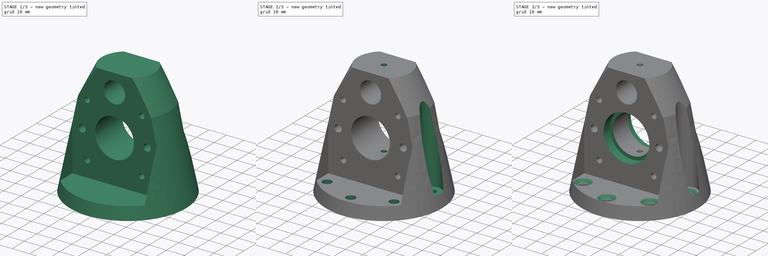
[diagram: build sequence overview — one tinted view per stage of 3, left to right]
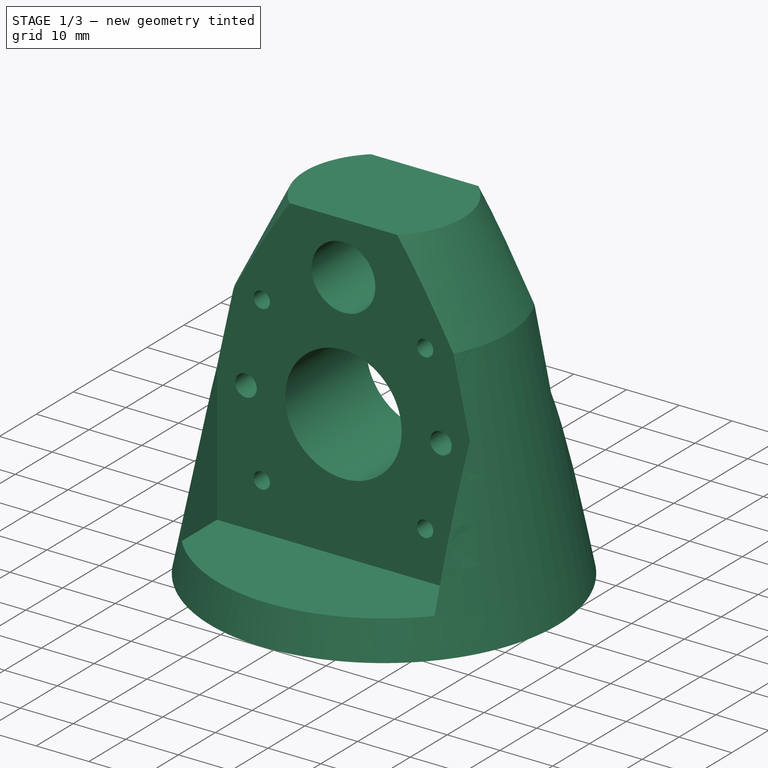
[diagram: stage 1 of 3 — iso view after this stage's code; geometry added in this stage tinted green]
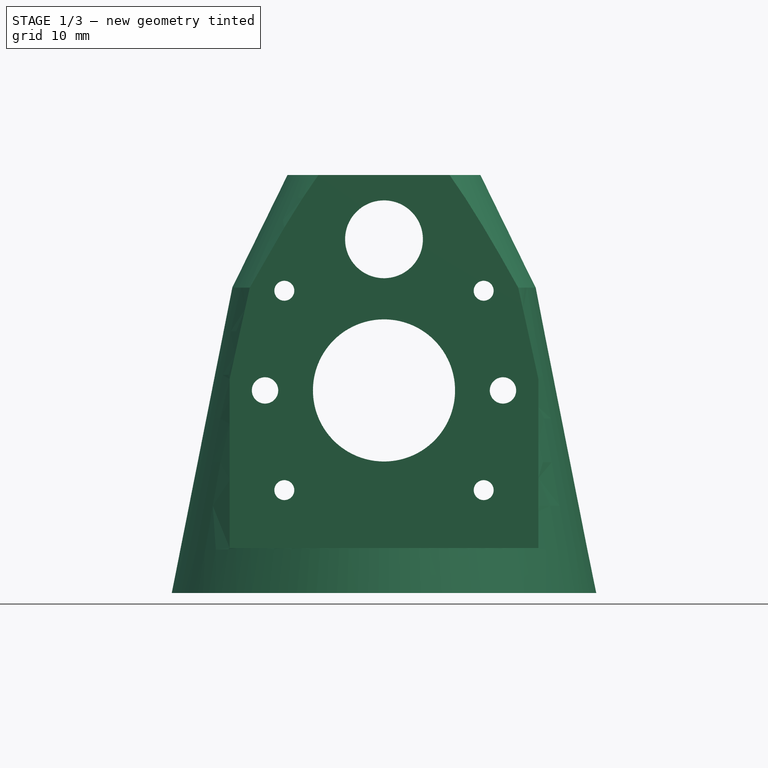
[diagram: stage 1 of 3 — front view after this stage's code; geometry added in this stage tinted green]
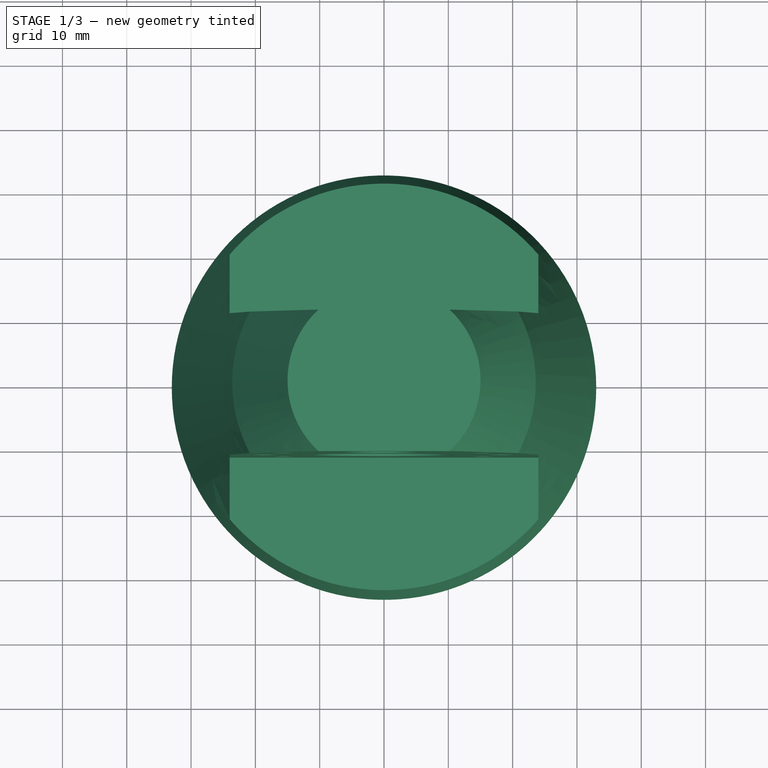
[diagram: stage 1 of 3 — top view after this stage's code; geometry added in this stage tinted green]
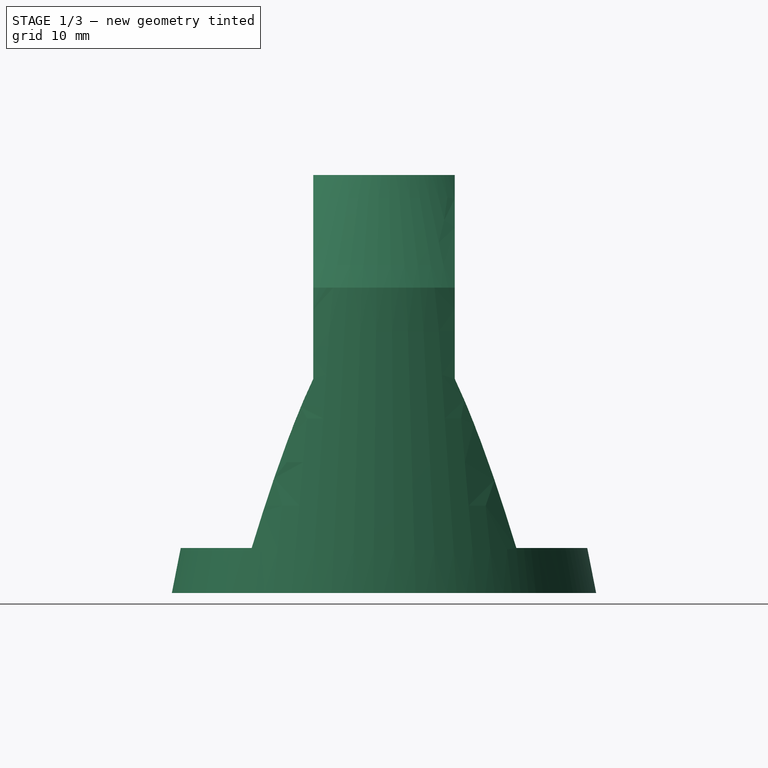
[diagram: stage 1 of 3 — right view after this stage's code; geometry added in this stage tinted green]
FCSTD DOCUMENT  (FreeCAD 0.19R)
Label: rod_holder_y
License: All rights reserved
LicenseURL: http://en.wikipedia.org/wiki/All_rights_reserved
objects: Sketcher::SketchObject×7, PartDesign::Pocket×6, PartDesign::Revolution×1, PartDesign::Chamfer×1, PartDesign::Body×1
note: 24 computed .brp shape members not serialized (recipe doc carries the construction recipe); baked Part::Feature solids carry a one-line shape summary decoded from their .brp

FEATURE [Sketcher::SketchObject] Sketch
  FullyConstrained = false
  MapMode = 5
  Placement = pos=(0,0,0) rot=(1,0,0;1.5708rad)
  Support = -> [XZ_Plane]
  sketch-geometry (5):
    g0: LineSegment StartX=0 StartY=0 StartZ=0 EndX=-33 EndY=0 EndZ=0
    g1: LineSegment StartX=0 StartY=0 StartZ=0 EndX=0 EndY=65 EndZ=0
    g2: LineSegment StartX=0 StartY=65 StartZ=0 EndX=-15 EndY=65 EndZ=0
    g3: LineSegment StartX=-15 StartY=65 StartZ=0 EndX=-23.588 EndY=47.4894 EndZ=0
    g4: LineSegment StartX=-23.588 StartY=47.4894 StartZ=0 EndX=-33 EndY=0 EndZ=0
  constraints (12):
    c: Coincident(g0,g-1)
    c: PointOnObject(g0,g-1)
    c: Coincident(g1,g0)
    c: PointOnObject(g1,g-2)
    c: Distance(g0) = 33
    c: Distance(g1) = 65
    c: Coincident(g2,g1)
    c: Horizontal(g2)
    c: Distance(g2) = 15
    c: Coincident(g3,g2)
    c: Coincident(g4,g3)
    c: Coincident(g4,g0)
FEATURE [PartDesign::Revolution] Revolution
  Angle = 360
  Axis = (0,-2e-16,1)
  Base = (0,0,0)
  Placement = pos=(0,0,0) rot=(1,0,0;1.5708rad)
  Profile = -> Sketch
  ReferenceAxis = -> Sketch [V_Axis]
FEATURE [Sketcher::SketchObject] Sketch001
  ExternalGeometry = -> [Revolution]
  FullyConstrained = false
  MapMode = 5
  Placement = pos=(0,0,0) rot=(1,0,0;1.5708rad)
  Support = -> [XZ_Plane]
  sketch-geometry (19):
    g0: LineSegment StartX=0 StartY=55 StartZ=0 EndX=0 EndY=47.4894 EndZ=0
    g1: Circle CenterX=0 CenterY=55 CenterZ=0 NormalX=0 NormalY=0 NormalZ=1 AngleXU=0 Radius=6.05
    g2: LineSegment StartX=0 StartY=55 StartZ=0 EndX=3.585e-12 EndY=31.5 EndZ=0
    g3: Circle CenterX=3.585e-12 CenterY=31.5 CenterZ=0 NormalX=0 NormalY=0 NormalZ=1 AngleXU=0 Radius=11.05
    g4: LineSegment StartX=3.585e-12 StartY=31.5 StartZ=0 EndX=18.5 EndY=31.5 EndZ=0
    g5: LineSegment StartX=3.585e-12 StartY=31.5 StartZ=0 EndX=-15.5 EndY=31.5 EndZ=0
    g6: Circle CenterX=18.5 CenterY=31.5 CenterZ=0 NormalX=0 NormalY=0 NormalZ=1 AngleXU=0 Radius=2.05
    g7: LineSegment StartX=-15.5 StartY=31.5 StartZ=0 EndX=15.5 EndY=31.5 EndZ=0
    g8: LineSegment StartX=15.5 StartY=31.5 StartZ=0 EndX=15.5 EndY=47 EndZ=0
    g9: LineSegment StartX=15.5 StartY=47 StartZ=0 EndX=-15.5 EndY=47 EndZ=0
    g10: LineSegment StartX=-15.5 StartY=47 StartZ=0 EndX=-15.5 EndY=31.5 EndZ=0
    g11: LineSegment StartX=-15.5 StartY=31.5 StartZ=0 EndX=13.8832 EndY=31.5 EndZ=0
    g12: LineSegment StartX=15.5 StartY=16 StartZ=0 EndX=-15.5 EndY=16 EndZ=0
    g13: LineSegment StartX=-15.5 StartY=16 StartZ=0 EndX=-15.5 EndY=31.5 EndZ=0
    g14: Circle CenterX=-18.5 CenterY=31.5 CenterZ=0 NormalX=0 NormalY=0 NormalZ=1 AngleXU=0 Radius=2.05
    g15: Circle CenterX=-15.5 CenterY=16 CenterZ=0 NormalX=0 NormalY=0 NormalZ=1 AngleXU=0 Radius=1.55
    g16: Circle CenterX=15.5 CenterY=16 CenterZ=0 NormalX=0 NormalY=0 NormalZ=1 AngleXU=0 Radius=1.55
    g17: Circle CenterX=15.5 CenterY=47 CenterZ=0 NormalX=0 NormalY=0 NormalZ=1 AngleXU=0 Radius=1.55
    g18: Circle CenterX=-15.5 CenterY=47 CenterZ=0 NormalX=0 NormalY=0 NormalZ=1 AngleXU=0 Radius=1.55
  constraints (45):
    c: PointOnObject(g0,g-2)
    c: PointOnObject(g0,g-3)
    c: Vertical(g0)
    c: Coincident(g1,g0)
    c: Diameter(g1) = 12.1
    c: Coincident(g2,g1)
    c: Distance(g2) = 23.5
    c: Coincident(g3,g2)
    c: Diameter(g3) = 22.1
    c: Coincident(g4,g3)
    c: Horizontal(g4)
    c: Coincident(g5,g3)
    c: Horizontal(g5)
    c: Distance(g4) = 18.5
    c: Distance(g5) = 15.5
    c: Coincident(g6,g4)
    c: Coincident(g7,g8)
    c: Coincident(g8,g9)
    c: Coincident(g9,g10)
    c: Coincident(g10,g7)
    c: Horizontal(g7)
    c: Vertical(g8)
    c: Vertical(g10)
    c: Coincident(g7,g5)
    c: Coincident(g12,g13)
    c: Coincident(g13,g11)
    c: Horizontal(g11)
    c: Coincident(g11,g5)
    c: Distance(g9) = 31
    c: Distance(g9,g12) = 31
    c: Symmetric(g9,g12,g5)
    c: Symmetric(g9,g8,g2)
    c: Symmetric(g12,g12,g-2)
    c: Coincident(g15,g12)
    c: Coincident(g16,g12)
    c: Coincident(g17,g8)
    c: Coincident(g18,g9)
    c: Symmetric(g6,g14,g-2)
    c: Diameter(g6) = 4.1
    c: Equal(g6,g14)
    c: Diameter(g16) = 3.1
    c: Equal(g16,g17)
    c: Equal(g16,g18)
    c: Equal(g16,g15)
    c: DistanceY(g-4,g-4) = 0
FEATURE [PartDesign::Pocket] Pocket
  BaseFeature = -> Revolution
  Length = 5
  Length2 = 100
  Midplane = true
  Placement = pos=(0,0,0) rot=(1,0,0;1.5708rad)
  Profile = -> Sketch001
  Type = 1
FEATURE [Sketcher::SketchObject] Sketch002
  FullyConstrained = true
  MapMode = 5
  Placement = pos=(0,1.44e-14,65) rot=(0,0,1;3.14159rad)
  Support = -> [Pocket]
  sketch-geometry (8):
    g0: LineSegment StartX=-24 StartY=41 StartZ=0 EndX=24 EndY=41 EndZ=0
    g1: LineSegment StartX=24 StartY=41 StartZ=0 EndX=24 EndY=11 EndZ=0
    g2: LineSegment StartX=24 StartY=11 StartZ=0 EndX=-24 EndY=11 EndZ=0
    g3: LineSegment StartX=-24 StartY=11 StartZ=0 EndX=-24 EndY=41 EndZ=0
    g4: LineSegment StartX=-24 StartY=-11 StartZ=0 EndX=24 EndY=-11 EndZ=0
    g5: LineSegment StartX=24 StartY=-11 StartZ=0 EndX=24 EndY=-41 EndZ=0
    g6: LineSegment StartX=24 StartY=-41 StartZ=0 EndX=-24 EndY=-41 EndZ=0
    g7: LineSegment StartX=-24 StartY=-41 StartZ=0 EndX=-24 EndY=-11 EndZ=0
  constraints (22):
    c: Coincident(g0,g1)
    c: Coincident(g1,g2)
    c: Coincident(g2,g3)
    c: Coincident(g3,g0)
    c: Horizontal(g2)
    c: Vertical(g1)
    c: Vertical(g3)
    c: DistanceY(g-1,g1) = 11
    c: Distance(g2) = 48
    c: Distance(g1) = 30
    c: Coincident(g4,g5)
    c: Coincident(g5,g6)
    c: Coincident(g6,g7)
    c: Coincident(g7,g4)
    c: Horizontal(g4)
    c: Vertical(g5)
    c: Vertical(g7)
    c: DistanceY(g4,g-1) = 11
    c: Distance(g5) = 30
    c: Distance(g6) = 48
    c: Symmetric(g5,g6,g-2)
    c: Symmetric(g0,g0,g-2)
FEATURE [PartDesign::Pocket] Pocket001
  BaseFeature = -> Pocket
  Length = 58
  Length2 = 100
  Placement = pos=(0,0,0) rot=(1,0,0;1.5708rad)
  Profile = -> Sketch002
  Type = 0
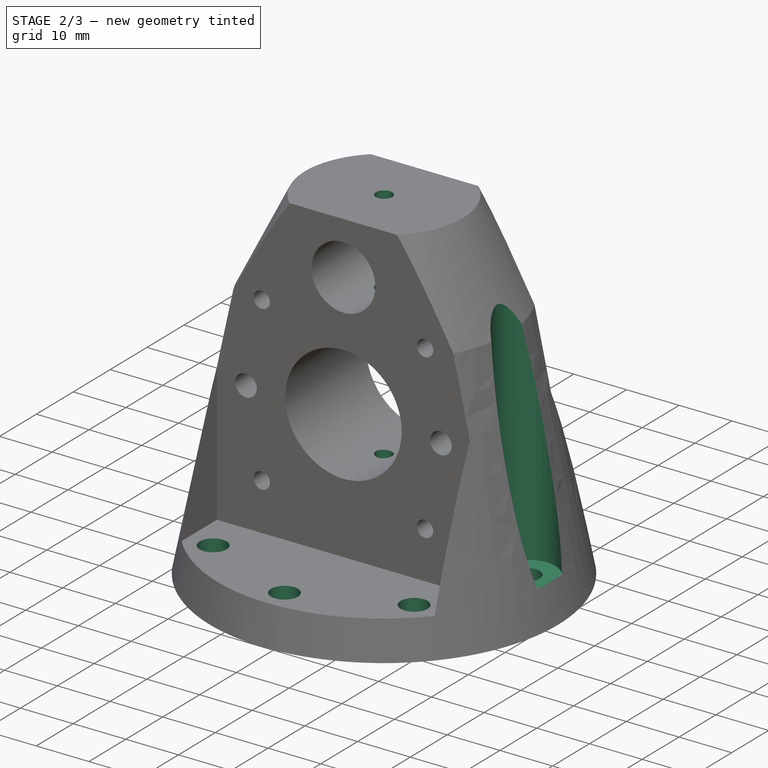
[diagram: stage 2 of 3 — iso view after this stage's code; geometry added in this stage tinted green]
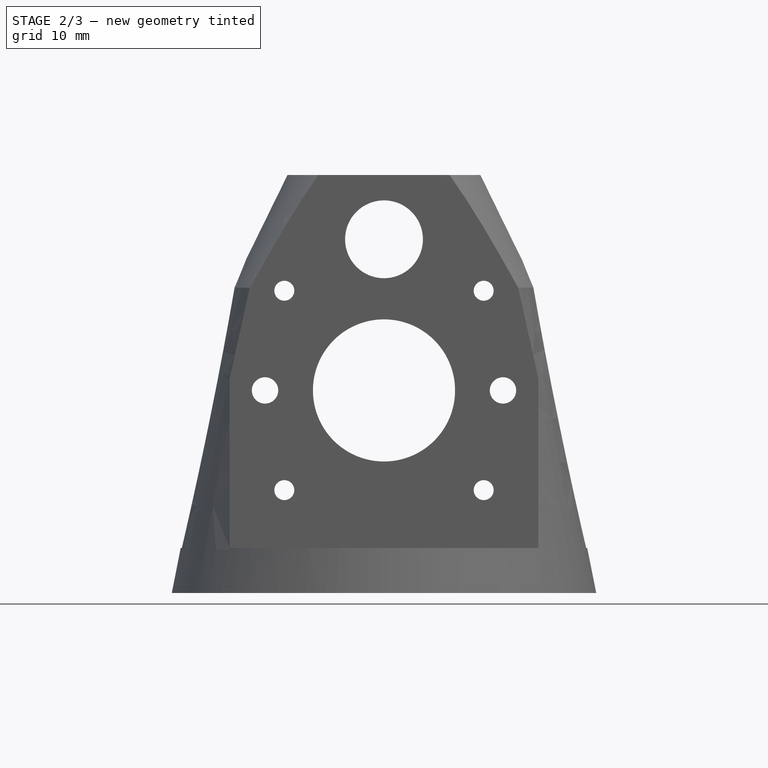
[diagram: stage 2 of 3 — front view after this stage's code; geometry added in this stage tinted green]
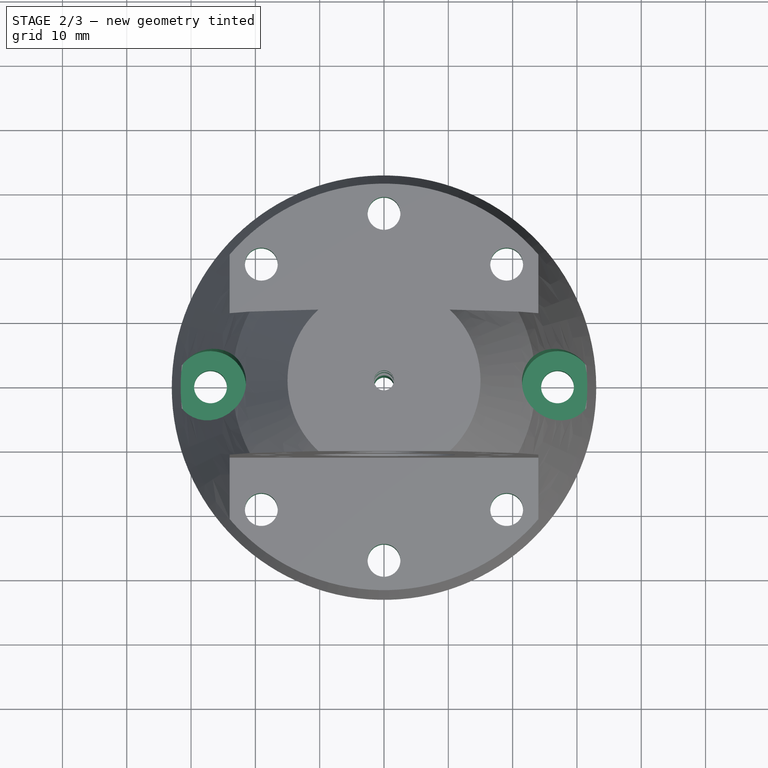
[diagram: stage 2 of 3 — top view after this stage's code; geometry added in this stage tinted green]
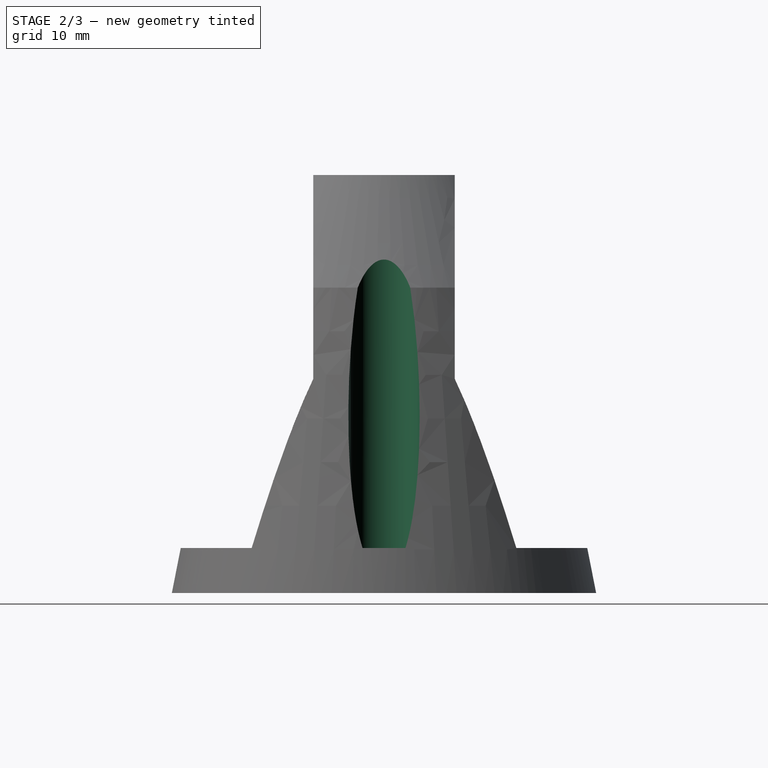
[diagram: stage 2 of 3 — right view after this stage's code; geometry added in this stage tinted green]
FEATURE [Sketcher::SketchObject] Sketch003
  FullyConstrained = false
  MapMode = 5
  Placement = pos=(0,0,0) rot=(1,0,0;3.14159rad)
  Support = -> [Pocket001]
  sketch-geometry (18):
    g0: LineSegment StartX=26.9777 StartY=0 StartZ=0 EndX=19.0761 EndY=19.0761 EndZ=0
    g1: LineSegment StartX=19.0761 StartY=19.0761 StartZ=0 EndX=3.6e-15 EndY=26.9777 EndZ=0
    g2: LineSegment StartX=3.6e-15 StartY=26.9777 StartZ=0 EndX=-19.0761 EndY=19.0761 EndZ=0
    g3: LineSegment StartX=-19.0761 StartY=19.0761 StartZ=0 EndX=-26.9777 EndY=0 EndZ=0
    g4: LineSegment StartX=-26.9777 StartY=0 StartZ=0 EndX=-19.0761 EndY=-19.0761 EndZ=0
    g5: LineSegment StartX=-19.0761 StartY=-19.0761 StartZ=0 EndX=-2.13e-14 EndY=-26.9777 EndZ=0
    g6: LineSegment StartX=-2.13e-14 StartY=-26.9777 StartZ=0 EndX=19.0761 EndY=-19.0761 EndZ=0
    g7: LineSegment StartX=19.0761 StartY=-19.0761 StartZ=0 EndX=26.9777 EndY=0 EndZ=0
    g8: Circle CenterX=0 CenterY=0 CenterZ=0 NormalX=0 NormalY=0 NormalZ=1 AngleXU=0 Radius=26.9777
    g9: Circle CenterX=19.0761 CenterY=19.0761 CenterZ=0 NormalX=0 NormalY=0 NormalZ=1 AngleXU=0 Radius=2.55
    g10: Circle CenterX=3.6e-15 CenterY=26.9777 CenterZ=0 NormalX=0 NormalY=0 NormalZ=1 AngleXU=0 Radius=2.55
    g11: Circle CenterX=-19.0761 CenterY=19.0761 CenterZ=0 NormalX=0 NormalY=0 NormalZ=1 AngleXU=0 Radius=2.55
    g12: Circle CenterX=26.9777 CenterY=0 CenterZ=0 NormalX=0 NormalY=0 NormalZ=1 AngleXU=0 Radius=2.55
    g13: Circle CenterX=19.0761 CenterY=-19.0761 CenterZ=0 NormalX=0 NormalY=0 NormalZ=1 AngleXU=0 Radius=2.55
    g14: Circle CenterX=-19.0761 CenterY=-19.0761 CenterZ=0 NormalX=0 NormalY=0 NormalZ=1 AngleXU=0 Radius=2.55
    g15: Circle CenterX=-2.13e-14 CenterY=-26.9777 CenterZ=0 NormalX=0 NormalY=0 NormalZ=1 AngleXU=0 Radius=2.55
    g16: Circle CenterX=-26.9777 CenterY=0 CenterZ=0 NormalX=0 NormalY=0 NormalZ=1 AngleXU=0 Radius=2.55
    g17: Circle CenterX=0 CenterY=0 CenterZ=0 NormalX=0 NormalY=0 NormalZ=1 AngleXU=0 Radius=1.55
  constraints (37):
    c: Coincident(g0,g1)
    c: Coincident(g1,g2)
    c: Coincident(g2,g3)
    c: Coincident(g3,g4)
    c: Coincident(g4,g5)
    c: Coincident(g5,g6)
    c: Coincident(g6,g7)
    c: Coincident(g7,g0)
    c: Equal(g0, g1-g7) x7
    c: PointOnObject(g0,g8)
    c: PointOnObject(g1,g8)
    c: PointOnObject(g2,g8)
    c: PointOnObject(g3,g8)
    c: PointOnObject(g4,g8)
    c: PointOnObject(g5,g8)
    c: PointOnObject(g6,g8)
    c: PointOnObject(g7,g8)
    c: Coincident(g8,g-1)
    c: PointOnObject(g7,g-1)
    c: Coincident(g9,g0)
    c: Coincident(g10,g1)
    c: Coincident(g11,g2)
    c: Coincident(g12,g0)
    c: Coincident(g13,g6)
    c: Coincident(g14,g4)
    c: Coincident(g15,g5)
    c: Coincident(g16,g3)
    c: Coincident(g17,g-1)
    c: Diameter(g17) = 3.1
    c: Diameter(g9) = 5.1
    c: Equal(g9,g12)
    c: Equal(g9,g13)
    c: Equal(g9,g15)
    c: Equal(g9,g14)
    c: Equal(g9,g16)
    c: Equal(g9,g11)
    c: Equal(g9,g10)
FEATURE [PartDesign::Pocket] Pocket002
  BaseFeature = -> Pocket001
  Length = 5
  Length2 = 100
  Placement = pos=(0,0,0) rot=(1,0,0;1.5708rad)
  Profile = -> Sketch003
  Type = 1
FEATURE [Sketcher::SketchObject] Sketch004
  AttachmentOffset = pos=(0,0,-7) rot=(0,0,1;0rad)
  FullyConstrained = true
  MapMode = 5
  Placement = pos=(0,3.1e-15,7) rot=(1,0,0;3.14159rad)
  Support = -> [Pocket002]
  sketch-geometry (2):
    g0: Circle CenterX=27 CenterY=0 CenterZ=0 NormalX=0 NormalY=0 NormalZ=1 AngleXU=0 Radius=5.55
    g1: Circle CenterX=-27 CenterY=0 CenterZ=0 NormalX=0 NormalY=0 NormalZ=1 AngleXU=0 Radius=5.55
  constraints (5):
    c: PointOnObject(g0,g-1)
    c: Diameter(g1) = 11.1
    c: Equal(g1,g0)
    c: Symmetric(g0,g1,g-2)
    c: Distance(g0,g1) = 54
FEATURE [PartDesign::Pocket] Pocket003
  BaseFeature = -> Pocket002
  Length = 80
  Length2 = 100
  Placement = pos=(0,0,0) rot=(1,0,0;1.5708rad)
  Profile = -> Sketch004
  Type = 0
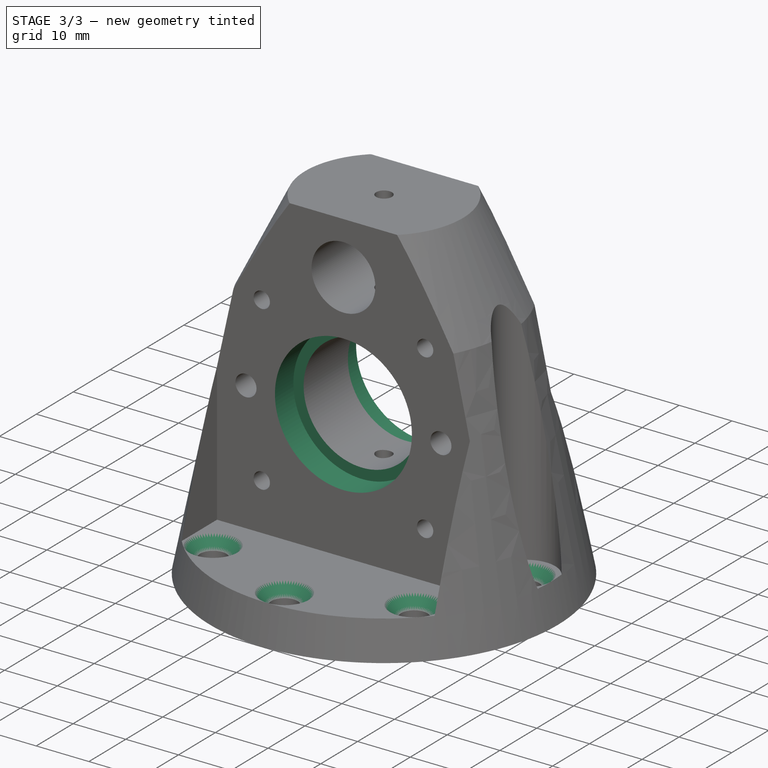
[diagram: stage 3 of 3 — iso view after this stage's code; geometry added in this stage tinted green]
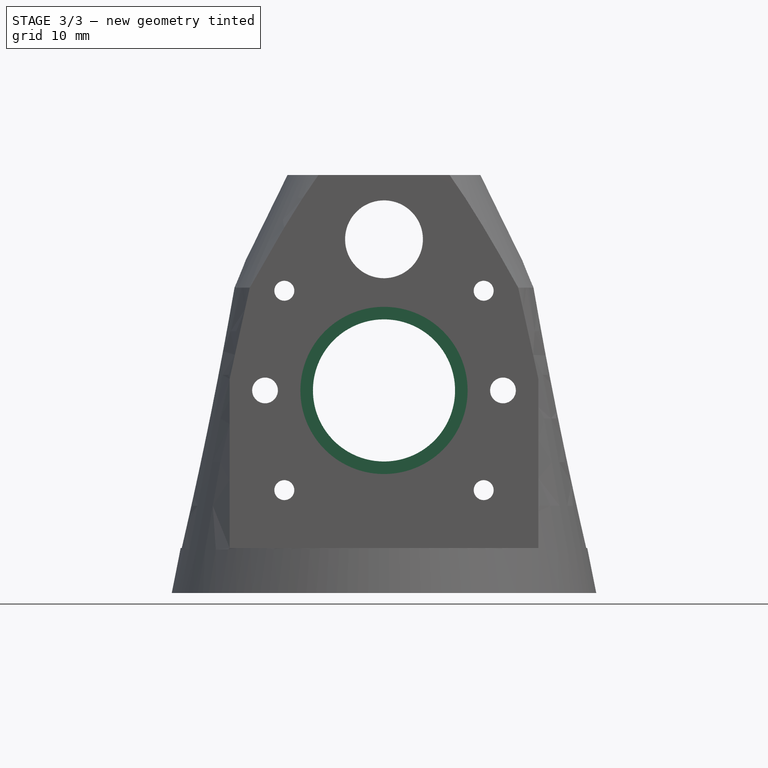
[diagram: stage 3 of 3 — front view after this stage's code; geometry added in this stage tinted green]
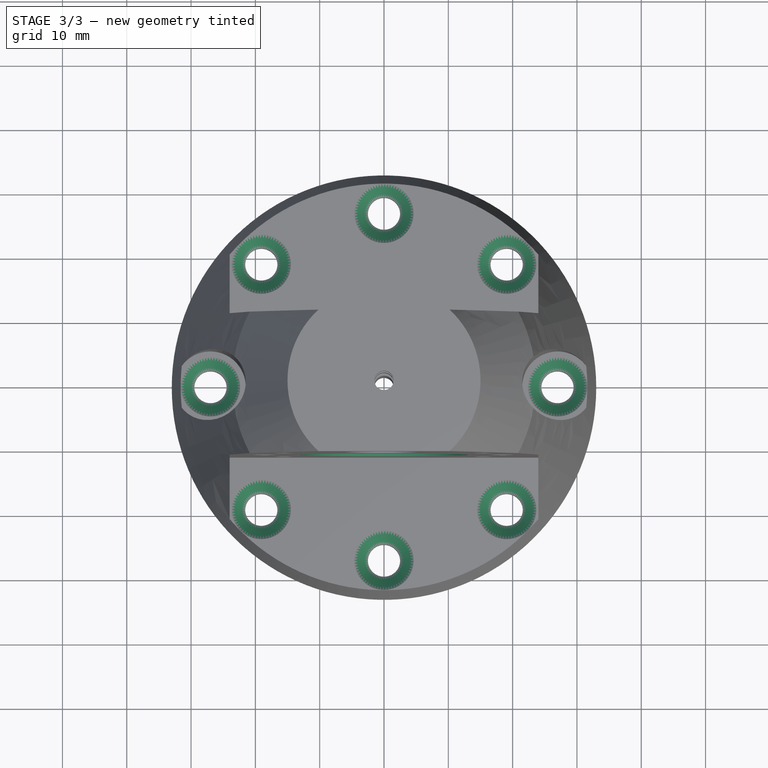
[diagram: stage 3 of 3 — top view after this stage's code; geometry added in this stage tinted green]
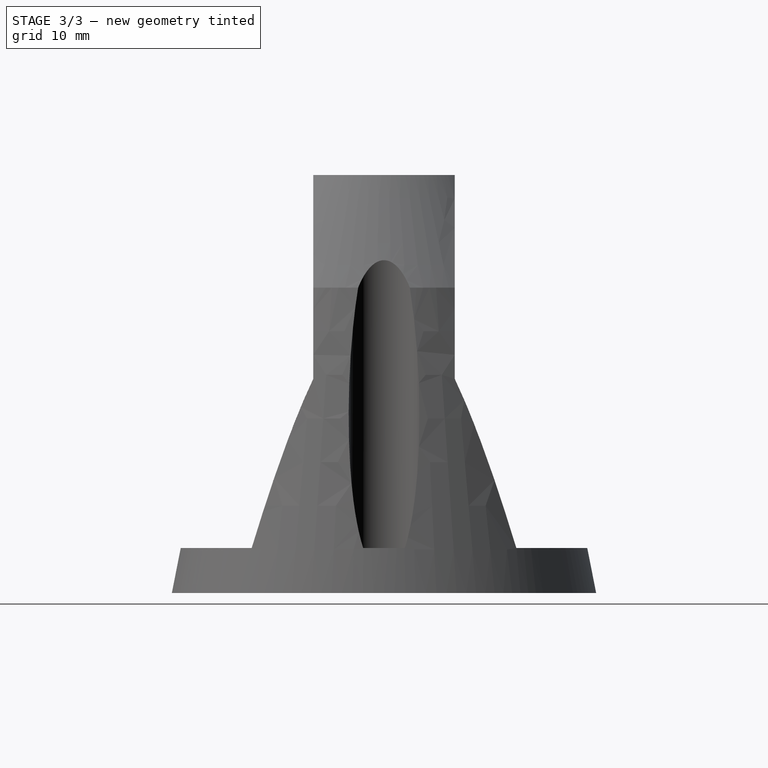
[diagram: stage 3 of 3 — right view after this stage's code; geometry added in this stage tinted green]
FEATURE [Sketcher::SketchObject] Sketch005
  ExternalGeometry = -> [Pocket003]
  FullyConstrained = true
  MapMode = 5
  Placement = pos=(0,-11,6.1e-15) rot=(1,0,0;1.5708rad)
  Support = -> [Pocket003]
  sketch-geometry (1):
    g0: Circle CenterX=0 CenterY=31.5 CenterZ=0 NormalX=0 NormalY=0 NormalZ=1 AngleXU=0 Radius=13.05
  constraints (2):
    c: Coincident(g0,g-3)
    c: Diameter(g0) = 26.1
FEATURE [PartDesign::Pocket] Pocket004
  BaseFeature = -> Pocket003
  Length = 5
  Length2 = 100
  Placement = pos=(0,0,0) rot=(1,0,0;1.5708rad)
  Profile = -> Sketch005
  Type = 0
FEATURE [Sketcher::SketchObject] Sketch006
  ExternalGeometry = -> [Pocket004]
  FullyConstrained = true
  MapMode = 5
  Placement = pos=(0,11,-7.3e-15) rot=(-1,0,0;1.5708rad)
  Support = -> [Pocket004]
  sketch-geometry (1):
    g0: Circle CenterX=0 CenterY=-31.5 CenterZ=0 NormalX=0 NormalY=0 NormalZ=1 AngleXU=0 Radius=13.05
  constraints (2):
    c: Coincident(g0,g-3)
    c: Diameter(g0) = 26.1
FEATURE [PartDesign::Pocket] Pocket005
  BaseFeature = -> Pocket004
  Length = 5
  Length2 = 100
  Placement = pos=(0,0,0) rot=(1,0,0;1.5708rad)
  Profile = -> Sketch006
  Type = 0
FEATURE [PartDesign::Chamfer] Chamfer
  Angle = 45
  Base = -> Pocket005 [Edge48,Edge46,Edge50,Edge44,Edge42,Edge36,Edge34,Edge38]
  BaseFeature = -> Pocket005
  ChamferType = 0
  FlipDirection = false
  Placement = pos=(0,0,0) rot=(1,0,0;1.5708rad)
  Size = 2.1
  Size2 = 1
  SupportTransform = false
FEATURE [PartDesign::Body] Body  label="y_rod_holder"
  Group = -> [Sketch,Revolution,Sketch001,Pocket,Sketch002,Pocket001,Sketch003,Pocket002,Sketch004,Pocket003,Sketch005,Pocket004,Sketch006,Pocket005,Chamfer]
  Origin = -> Origin
  Tip = -> Chamfer
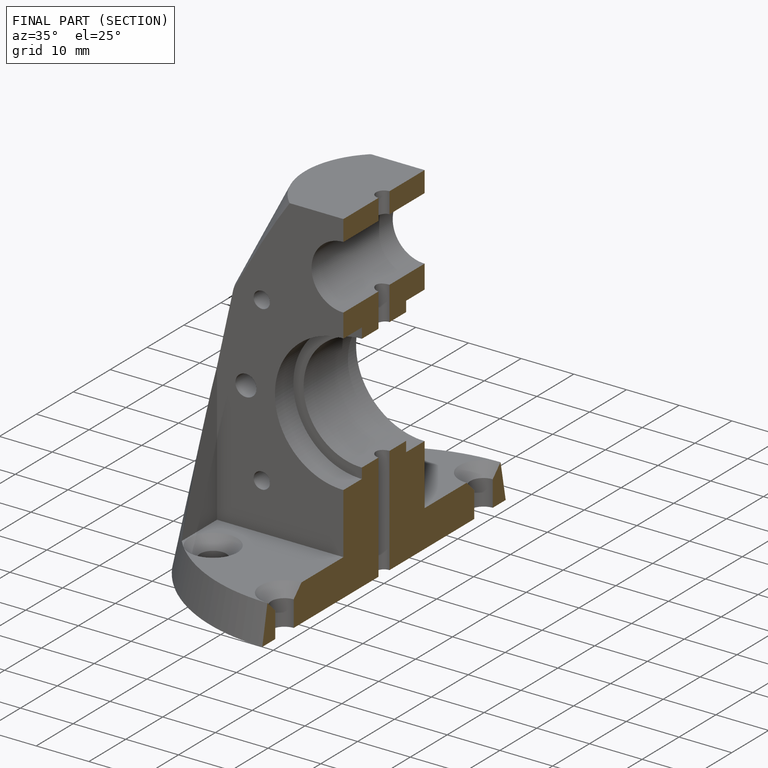
[diagram: finished part — half-section view (interior)]
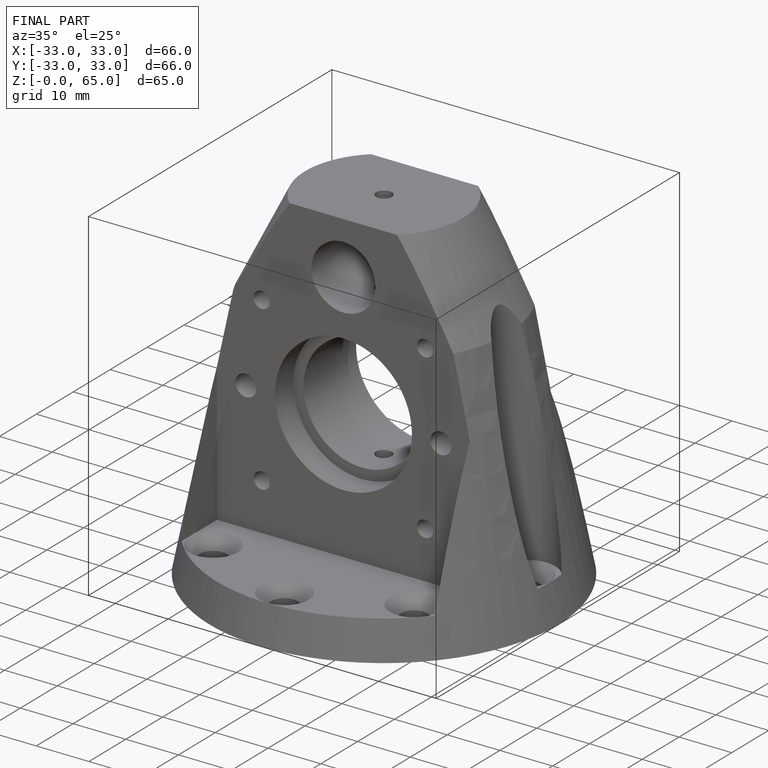
[diagram: finished part — iso view with bounding-box wireframe]
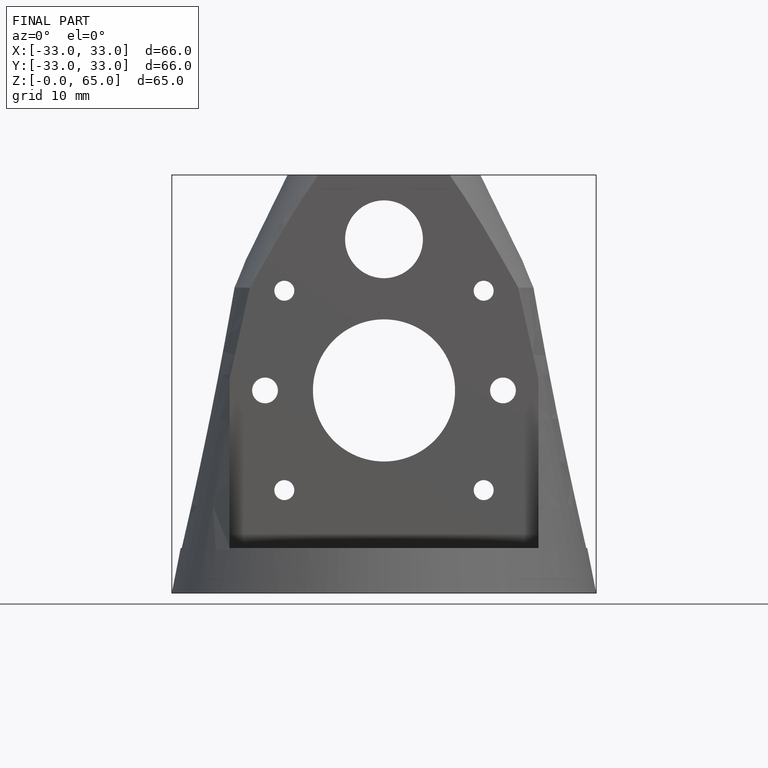
[diagram: finished part — front view with bounding-box wireframe]
